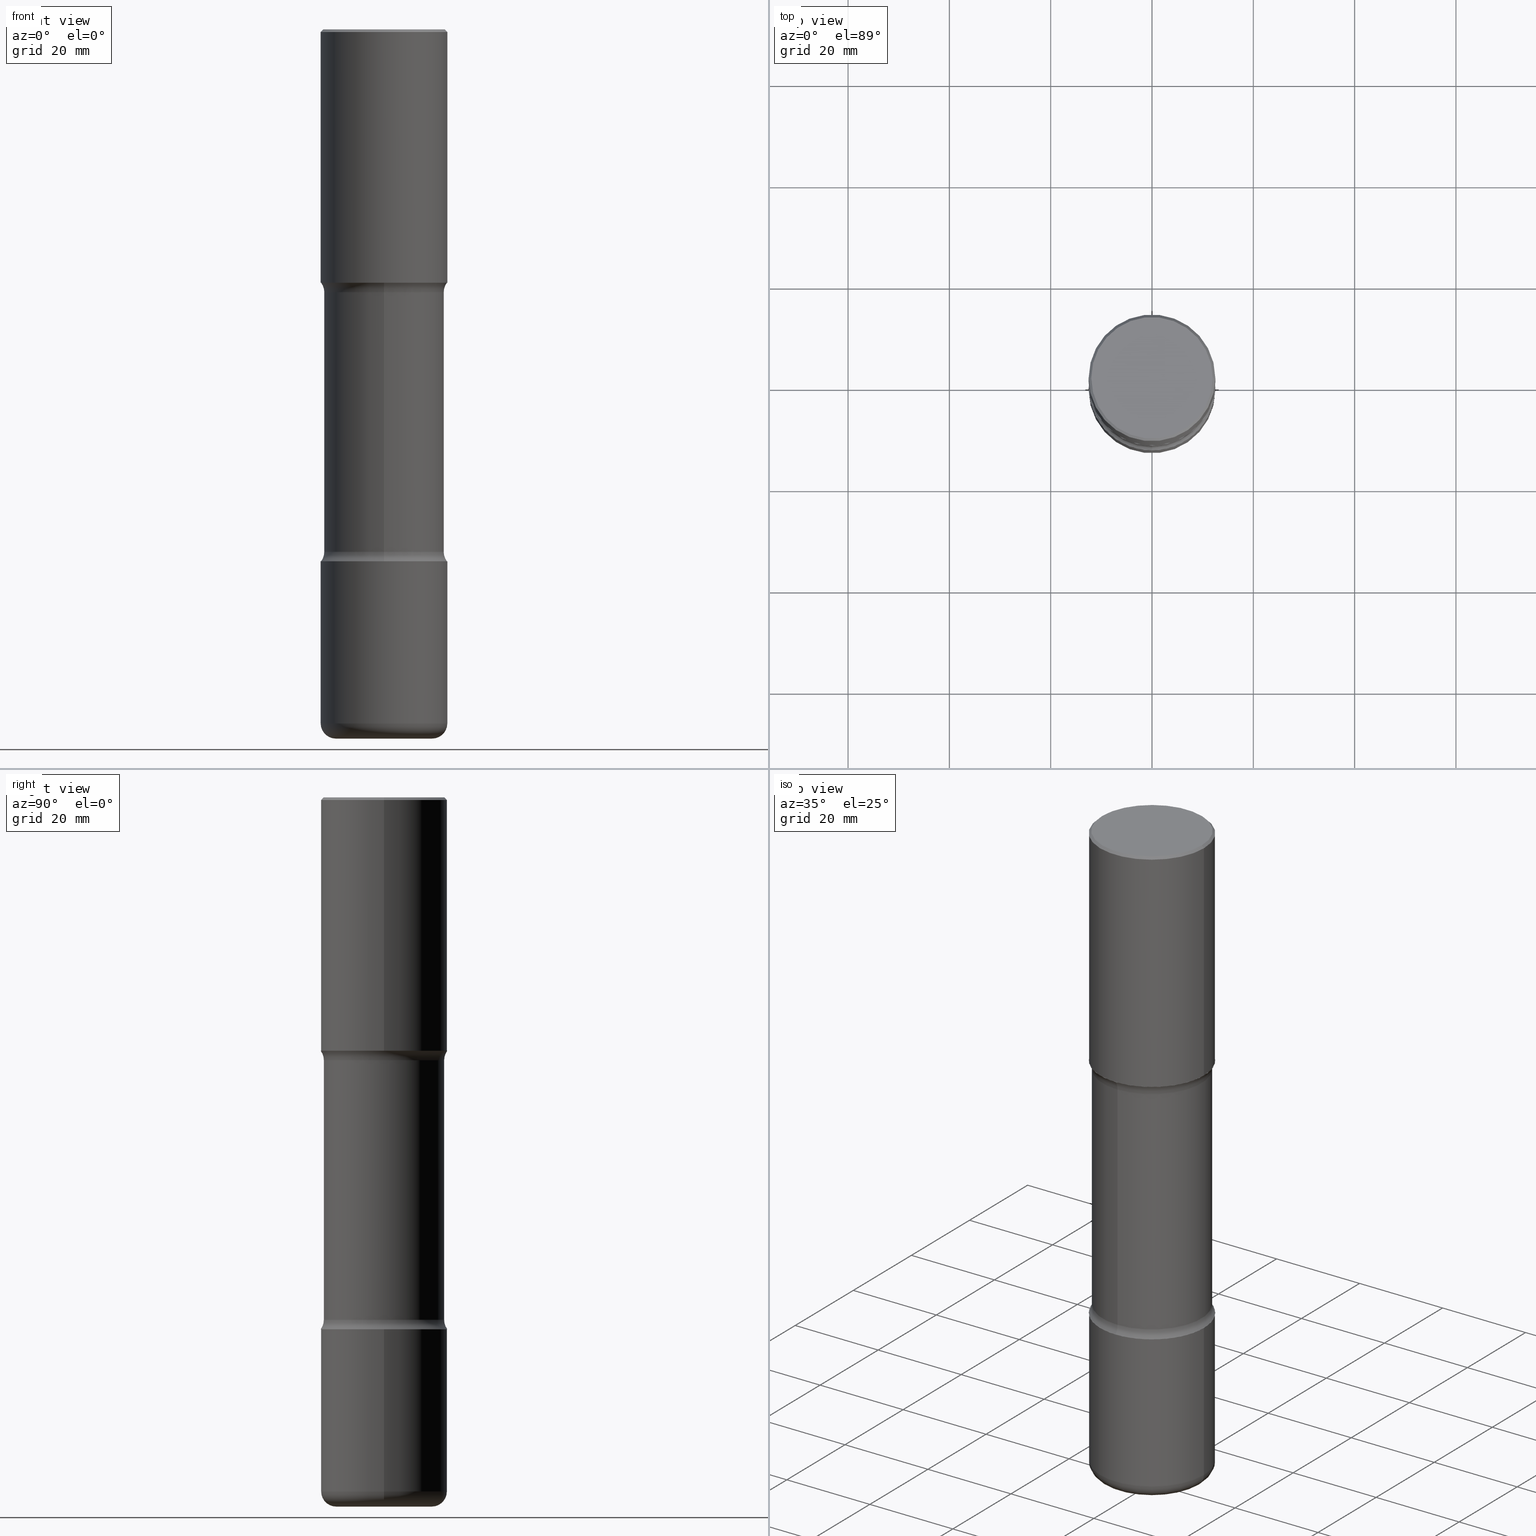
[diagram: canonical four-view strip — front | top / right | iso, engineering-drawing reading convention]
A machine part, canonical four-view strip (front | top / right | iso — engineering-drawing reading convention). The complete STEP part file that produces these views, byte-faithful:
ISO-10303-21;
HEADER;
FILE_DESCRIPTION (( 'STEP AP203' ),
    '1' );
FILE_NAME ('44645.STEP',
    '2024-03-02T02:24:33',
    ( '' ),
    ( '' ),
    'SwSTEP 2.0',
    'SolidWorks 2023',
    '' );
FILE_SCHEMA (( 'CONFIG_CONTROL_DESIGN' ));
ENDSEC;

DATA;
#1 =( CONVERSION_BASED_UNIT ( 'INCH', #312 ) LENGTH_UNIT ( ) NAMED_UNIT ( #356 ) );
#2 =( NAMED_UNIT ( * ) SI_UNIT ( $, .STERADIAN. ) SOLID_ANGLE_UNIT ( ) );
#3 = AXIS2_PLACEMENT_3D ( 'NONE', #272, #190, #344 ) ;
#4 = DIRECTION ( 'NONE',  ( -6.982962677686264344E-15, -1.000000000000000000, 0.000000000000000000 ) ) ;
#5 = ORIENTED_EDGE ( 'NONE', *, *, #541, .T. ) ;
#6 =( LENGTH_UNIT ( ) NAMED_UNIT ( * ) SI_UNIT ( $, .METRE. ) );
#7 = DIRECTION ( 'NONE',  ( 6.982962677686265133E-15, 1.000000000000000000, -3.313480949505536246E-15 ) ) ;
#8 = EDGE_CURVE ( 'NONE', #243, #454, #514, .T. ) ;
#9 = PERSON_AND_ORGANIZATION_ROLE ( 'classification_officer' ) ;
#10 = CARTESIAN_POINT ( 'NONE',  ( -0.4921499999999998098, 3.366835455046431295E-15, -0.02000000000000006981 ) ) ;
#11 = AXIS2_PLACEMENT_3D ( 'NONE', #81, #292, #208 ) ;
#12 = PRODUCT_DEFINITION ( 'UNKNOWN', '', #110, #72 ) ;
#13 = DIRECTION ( 'NONE',  ( -2.445468806185136597E-29, 3.491481338843145583E-15, 1.000000000000000000 ) ) ;
#14 = ORIENTED_EDGE ( 'NONE', *, *, #128, .T. ) ;
#15 = EDGE_CURVE ( 'NONE', #538, #104, #389, .T. ) ;
#16 = DIRECTION ( 'NONE',  ( 6.982962677686265133E-15, 1.000000000000000000, -3.313480949505536246E-15 ) ) ;
#17 = VERTEX_POINT ( 'NONE', #548 ) ;
#18 = DIRECTION ( 'NONE',  ( 1.000000000000000000, -6.982962677686265922E-15, 0.000000000000000000 ) ) ;
#19 = EDGE_LOOP ( 'NONE', ( #494, #460, #159, #319 ) ) ;
#20 = TOROIDAL_SURFACE ( 'NONE', #149, 0.5925000000000001377, 0.1250000000000000555 ) ;
#21 = AXIS2_PLACEMENT_3D ( 'NONE', #198, #151, #101 ) ;
#22 = DIRECTION ( 'NONE',  ( 7.105427357601001859E-15, 1.000000000000000000, -3.491481338843145583E-15 ) ) ;
#23 = EDGE_LOOP ( 'NONE', ( #457, #555 ) ) ;
#24 = DIRECTION ( 'NONE',  ( 2.438088387897960049E-29, -3.491481338843145188E-15, -1.000000000000000000 ) ) ;
#25 = EDGE_LOOP ( 'NONE', ( #116, #125 ) ) ;
#26 = PLANE ( 'NONE',  #11 ) ;
#27 = FACE_OUTER_BOUND ( 'NONE', #448, .T. ) ;
#28 = AXIS2_PLACEMENT_3D ( 'NONE', #401, #519, #137 ) ;
#29 = AXIS2_PLACEMENT_3D ( 'NONE', #176, #126, #294 ) ;
#30 = CARTESIAN_POINT ( 'NONE',  ( 0.4921500000000000874, -2.226866797914157358E-14, -5.393699999999999939 ) ) ;
#31 = DIRECTION ( 'NONE',  ( -6.982962677686266711E-15, -1.000000000000000000, 3.491481338843145583E-15 ) ) ;
#32 = CARTESIAN_POINT ( 'NONE',  ( -0.4921500000000000874, -1.533506682327494254E-14, -5.393699999999999939 ) ) ;
#33 = ADVANCED_FACE ( 'NONE', ( #420 ), #553, .T. ) ;
#34 = VERTEX_POINT ( 'NONE', #130 ) ;
#35 = PERSON_AND_ORGANIZATION ( #439, #398 ) ;
#36 = ORIENTED_EDGE ( 'NONE', *, *, #221, .F. ) ;
#37 = ADVANCED_FACE ( 'NONE', ( #27 ), #20, .F. ) ;
#38 = AXIS2_PLACEMENT_3D ( 'NONE', #44, #433, #41 ) ;
#39 = CALENDAR_DATE ( 2024, 1, 3 ) ;
#40 = AXIS2_PLACEMENT_3D ( 'NONE', #153, #103, #156 ) ;
#41 = DIRECTION ( 'NONE',  ( -6.982962677686264344E-15, -1.000000000000000000, 0.000000000000000000 ) ) ;
#42 = DIRECTION ( 'NONE',  ( 1.000000000000000000, 0.000000000000000000, 0.000000000000000000 ) ) ;
#43 = FACE_OUTER_BOUND ( 'NONE', #329, .T. ) ;
#44 = CARTESIAN_POINT ( 'NONE',  ( 4.137405386529213527E-15, 0.5924999999999860378, -4.059268949423749717 ) ) ;
#45 = ORIENTED_EDGE ( 'NONE', *, *, #114, .T. ) ;
#46 = PERSON_AND_ORGANIZATION ( #439, #398 ) ;
#47 = APPROVAL_PERSON_ORGANIZATION ( #263, #80, #388 ) ;
#48 = DIRECTION ( 'NONE',  ( -6.982962677686265922E-15, -1.000000000000000000, 3.313480949505536246E-15 ) ) ;
#49 = FACE_OUTER_BOUND ( 'NONE', #257, .T. ) ;
#50 = EDGE_CURVE ( 'NONE', #366, #34, #169, .T. ) ;
#51 = CARTESIAN_POINT ( 'NONE',  ( 1.010907895100811684E-28, -1.443308555850979562E-14, -4.133799999999999919 ) ) ;
#52 = APPROVAL ( #476, 'UNSPECIFIED' ) ;
#53 = APPROVAL_ROLE ( '' ) ;
#54 = CARTESIAN_POINT ( 'NONE',  ( 0.000000000000000000, 0.000000000000000000, 0.000000000000000000 ) ) ;
#55 = AXIS2_PLACEMENT_3D ( 'NONE', #437, #310, #4 ) ;
#56 = VERTEX_POINT ( 'NONE', #270 ) ;
#57 = AXIS2_PLACEMENT_3D ( 'NONE', #380, #547, #123 ) ;
#58 = CC_DESIGN_SECURITY_CLASSIFICATION ( #279, ( #110 ) ) ;
#59 = CARTESIAN_POINT ( 'NONE',  ( 4.890937612370289799E-31, -6.982962677686315028E-17, -0.02000000000000006981 ) ) ;
#60 = ORIENTED_EDGE ( 'NONE', *, *, #268, .T. ) ;
#61 = CC_DESIGN_DATE_AND_TIME_ASSIGNMENT ( #364, #100, ( #279 ) ) ;
#62 = FACE_OUTER_BOUND ( 'NONE', #215, .T. ) ;
#63 = ORIENTED_EDGE ( 'NONE', *, *, #188, .T. ) ;
#64 = FACE_OUTER_BOUND ( 'NONE', #276, .T. ) ;
#65 = ORIENTED_EDGE ( 'NONE', *, *, #339, .F. ) ;
#66 = AXIS2_PLACEMENT_3D ( 'NONE', #525, #308, #266 ) ;
#67 = CONICAL_SURFACE ( 'NONE', #416, 0.4921499999999998098, 0.7853981633974476129 ) ;
#68 = CARTESIAN_POINT ( 'NONE',  ( 3.297005828269569180E-15, 0.4721499999999997921, -1.637831632909539243E-15 ) ) ;
#69 = DIRECTION ( 'NONE',  ( -2.445468806185136597E-29, 3.491481338843145583E-15, 1.000000000000000000 ) ) ;
#70 = CARTESIAN_POINT ( 'NONE',  ( -5.219257071676102792E-46, 7.451715851902241201E-32, 2.134256245050207180E-17 ) ) ;
#71 = ORIENTED_EDGE ( 'NONE', *, *, #298, .F. ) ;
#72 = DESIGN_CONTEXT ( 'detailed design', #470, 'design' ) ;
#73 = CARTESIAN_POINT ( 'NONE',  ( 4.544765034558141024E-29, -7.258405258545457646E-15, -1.968500000000000139 ) ) ;
#74 = ORIENTED_EDGE ( 'NONE', *, *, #513, .T. ) ;
#75 = ADVANCED_BREP_SHAPE_REPRESENTATION ( '44645', ( #94, #105, #95, #323 ), #251 ) ;
#76 = TOROIDAL_SURFACE ( 'NONE', #306, 0.5925000000000002487, 0.1250000000000000833 ) ;
#77 = EDGE_CURVE ( 'NONE', #247, #120, #261, .T. ) ;
#78 = DIRECTION ( 'NONE',  ( 1.000000000000000000, -6.982962677686265922E-15, 4.876176775795935793E-29 ) ) ;
#79 = CARTESIAN_POINT ( 'NONE',  ( 4.757713796991006473E-29, -7.474685786972130125E-15, -2.043031050576253893 ) ) ;
#80 = APPROVAL ( #521, 'UNSPECIFIED' ) ;
#81 = CARTESIAN_POINT ( 'NONE',  ( 4.813905344975441835E-29, -6.872981015512731707E-15, -1.968500000000000139 ) ) ;
#82 = ORIENTED_EDGE ( 'NONE', *, *, #464, .T. ) ;
#83 = APPROVAL_ROLE ( '' ) ;
#84 = LINE ( 'NONE', #228, #415 ) ;
#85 = DATE_AND_TIME ( #88, #271 ) ;
#86 = AXIS2_PLACEMENT_3D ( 'NONE', #377, #328, #503 ) ;
#87 = DIRECTION ( 'NONE',  ( -2.445468806185136877E-29, 3.491481338843145188E-15, 1.000000000000000000 ) ) ;
#88 = CALENDAR_DATE ( 2024, 1, 3 ) ;
#89 = LINE ( 'NONE', #259, #350 ) ;
#90 = ADVANCED_FACE ( 'NONE', ( #487 ), #264, .T. ) ;
#91 = EDGE_LOOP ( 'NONE', ( #430, #36 ) ) ;
#92 = APPLICATION_PROTOCOL_DEFINITION ( 'international standard', 'config_control_design', 1994, #117 ) ;
#93 = DIRECTION ( 'NONE',  ( -2.445468806185136597E-29, 3.491481338843145583E-15, 1.000000000000000000 ) ) ;
#94 = MANIFOLD_SOLID_BREP ( 'Body-Move/Copy2[1]', #361 ) ;
#95 = MANIFOLD_SOLID_BREP ( 'Body-Move/Copy2[4]', #360 ) ;
#96 = CARTESIAN_POINT ( 'NONE',  ( 0.000000000000000000, 0.000000000000000000, 0.000000000000000000 ) ) ;
#97 = EDGE_CURVE ( 'NONE', #366, #235, #84, .T. ) ;
#98 = TOROIDAL_SURFACE ( 'NONE', #242, 0.5925000000000001377, 0.1250000000000000555 ) ;
#99 = CARTESIAN_POINT ( 'NONE',  ( -3.376394089603157682E-15, -0.4921500000000144648, -4.133799999999998143 ) ) ;
#100 = DATE_TIME_ROLE ( 'classification_date' ) ;
#101 = DIRECTION ( 'NONE',  ( 1.000000000000000000, -6.982962677686263555E-15, 4.883557194083111219E-29 ) ) ;
#102 = CALENDAR_DATE ( 2024, 1, 3 ) ;
#103 = DIRECTION ( 'NONE',  ( 2.569765813720951550E-29, -3.313480949505536246E-15, -1.000000000000000000 ) ) ;
#104 = VERTEX_POINT ( 'NONE', #404 ) ;
#105 = MANIFOLD_SOLID_BREP ( 'Body-Move/Copy2[2]', #406 ) ;
#106 = DIRECTION ( 'NONE',  ( 2.569765813720951550E-29, -3.313480949505536246E-15, -1.000000000000000000 ) ) ;
#107 = CIRCLE ( 'NONE', #38, 0.1250000000000001110 ) ;
#108 = CIRCLE ( 'NONE', #40, 0.4675000000000001932 ) ;
#109 = ORIENTED_EDGE ( 'NONE', *, *, #442, .T. ) ;
#110 = PRODUCT_DEFINITION_FORMATION_WITH_SPECIFIED_SOURCE ( 'ANY', '', #480, .NOT_KNOWN. ) ;
#111 = ADVANCED_FACE ( 'NONE', ( #147 ), #249, .T. ) ;
#112 = DIRECTION ( 'NONE',  ( -2.445468806185136597E-29, 3.491481338843145583E-15, 1.000000000000000000 ) ) ;
#113 = ORIENTED_EDGE ( 'NONE', *, *, #15, .T. ) ;
#114 = EDGE_CURVE ( 'NONE', #17, #538, #232, .T. ) ;
#115 = DIRECTION ( 'NONE',  ( 1.000000000000000000, -6.982962677686265922E-15, 0.000000000000000000 ) ) ;
#116 = ORIENTED_EDGE ( 'NONE', *, *, #520, .T. ) ;
#117 = APPLICATION_CONTEXT ( 'configuration controlled 3d designs of mechanical parts and assemblies' ) ;
#118 = ADVANCED_FACE ( 'NONE', ( #43 ), #486, .T. ) ;
#119 = DIRECTION ( 'NONE',  ( -1.000000000000000000, 6.982962677686265922E-15, 0.000000000000000000 ) ) ;
#120 = VERTEX_POINT ( 'NONE', #99 ) ;
#121 = CIRCLE ( 'NONE', #432, 0.4921500000000000874 ) ;
#122 = CC_DESIGN_APPROVAL ( #142, ( #279 ) ) ;
#123 = DIRECTION ( 'NONE',  ( 6.982962677686265133E-15, 1.000000000000000000, -3.506115072082475215E-15 ) ) ;
#124 = CC_DESIGN_PERSON_AND_ORGANIZATION_ASSIGNMENT ( #35, #431, ( #480 ) ) ;
#125 = ORIENTED_EDGE ( 'NONE', *, *, #402, .T. ) ;
#126 = DIRECTION ( 'NONE',  ( -2.445468806185136597E-29, 3.491481338843145583E-15, 1.000000000000000000 ) ) ;
#127 = DIRECTION ( 'NONE',  ( 2.569765813720951550E-29, -3.313480949505536246E-15, -1.000000000000000000 ) ) ;
#128 = EDGE_CURVE ( 'NONE', #34, #366, #461, .T. ) ;
#129 = CARTESIAN_POINT ( 'NONE',  ( 0.000000000000000000, 0.000000000000000000, 0.000000000000000000 ) ) ;
#130 = CARTESIAN_POINT ( 'NONE',  ( 0.4921500000000000874, -1.030964609733602906E-14, -1.968500000000000139 ) ) ;
#131 = LOCAL_TIME ( 21, 24, 33.00000000000000000, #222 ) ;
#132 = CARTESIAN_POINT ( 'NONE',  ( 0.4921500000000001984, -1.786975064033309297E-14, -4.133799999999999919 ) ) ;
#133 = VERTEX_POINT ( 'NONE', #349 ) ;
#134 = APPLICATION_PROTOCOL_DEFINITION ( 'international standard', 'config_control_design', 1994, #470 ) ;
#135 = DIRECTION ( 'NONE',  ( -2.445468806185136597E-29, 3.491481338843145583E-15, 1.000000000000000000 ) ) ;
#136 = DATE_AND_TIME ( #302, #131 ) ;
#137 = DIRECTION ( 'NONE',  ( 6.982962677686265133E-15, 1.000000000000000000, -3.313480949505536246E-15 ) ) ;
#138 = CIRCLE ( 'NONE', #66, 0.4921500000000001984 ) ;
#139 = PERSON_AND_ORGANIZATION ( #439, #398 ) ;
#140 = AXIS2_PLACEMENT_3D ( 'NONE', #395, #143, #309 ) ;
#141 = DIRECTION ( 'NONE',  ( 1.000000000000000000, -6.982962677686263555E-15, 4.883557194083111219E-29 ) ) ;
#142 = APPROVAL ( #533, 'UNSPECIFIED' ) ;
#143 = DIRECTION ( 'NONE',  ( -2.445468806185136597E-29, 3.491481338843145583E-15, 1.000000000000000000 ) ) ;
#144 = DIRECTION ( 'NONE',  ( 6.982962677686266711E-15, 1.000000000000000000, -3.330506545156064679E-15 ) ) ;
#145 = EDGE_CURVE ( 'NONE', #502, #517, #138, .T. ) ;
#146 = LINE ( 'NONE', #181, #382 ) ;
#147 = FACE_OUTER_BOUND ( 'NONE', #387, .T. ) ;
#148 = ADVANCED_FACE ( 'NONE', ( #49 ), #187, .F. ) ;
#149 = AXIS2_PLACEMENT_3D ( 'NONE', #79, #355, #7 ) ;
#150 = AXIS2_PLACEMENT_3D ( 'NONE', #129, #296, #78 ) ;
#151 = DIRECTION ( 'NONE',  ( -2.445468806185136597E-29, 3.491481338843145583E-15, 1.000000000000000000 ) ) ;
#152 = PERSON_AND_ORGANIZATION ( #439, #398 ) ;
#153 = CARTESIAN_POINT ( 'NONE',  ( 4.736292380389705471E-29, -7.505362474776508302E-15, -2.043031050576253893 ) ) ;
#154 = ORIENTED_EDGE ( 'NONE', *, *, #77, .T. ) ;
#155 = CYLINDRICAL_SURFACE ( 'NONE', #489, 0.4921500000000000874 ) ;
#156 = DIRECTION ( 'NONE',  ( 6.982962677686265133E-15, 1.000000000000000000, -3.506115072082475215E-15 ) ) ;
#157 = AXIS2_PLACEMENT_3D ( 'NONE', #485, #135, #141 ) ;
#158 = AXIS2_PLACEMENT_3D ( 'NONE', #493, #491, #365 ) ;
#159 = ORIENTED_EDGE ( 'NONE', *, *, #311, .T. ) ;
#160 = ADVANCED_FACE ( 'NONE', ( #182 ), #531, .F. ) ;
#161 = CARTESIAN_POINT ( 'NONE',  ( 1.347893496593123646E-28, -1.924434684343564878E-14, -5.511800000000000033 ) ) ;
#162 = ORIENTED_EDGE ( 'NONE', *, *, #455, .T. ) ;
#163 = EDGE_CURVE ( 'NONE', #17, #414, #223, .T. ) ;
#164 = DIRECTION ( 'NONE',  ( -2.445468806185136597E-29, 3.491481338843145583E-15, 1.000000000000000000 ) ) ;
#165 = VERTEX_POINT ( 'NONE', #305 ) ;
#166 = EDGE_CURVE ( 'NONE', #467, #133, #89, .T. ) ;
#167 = FACE_OUTER_BOUND ( 'NONE', #25, .T. ) ;
#168 = DIRECTION ( 'NONE',  ( 1.000000000000000000, -6.982962677686265922E-15, 4.876176775795935793E-29 ) ) ;
#169 = CIRCLE ( 'NONE', #341, 0.4921500000000000874 ) ;
#170 = AXIS2_PLACEMENT_3D ( 'NONE', #424, #466, #428 ) ;
#171 = CC_DESIGN_APPROVAL ( #52, ( #110 ) ) ;
#172 = FACE_OUTER_BOUND ( 'NONE', #204, .T. ) ;
#173 = EDGE_LOOP ( 'NONE', ( #293, #545, #202, #217 ) ) ;
#174 = FACE_OUTER_BOUND ( 'NONE', #509, .T. ) ;
#175 = DIRECTION ( 'NONE',  ( 1.000000000000000000, -6.982962677686274599E-15, 0.000000000000000000 ) ) ;
#176 = CARTESIAN_POINT ( 'NONE',  ( -5.219257071676102792E-46, 7.451715851902241201E-32, 2.134256245050207180E-17 ) ) ;
#177 = ORIENTED_EDGE ( 'NONE', *, *, #330, .F. ) ;
#178 = CIRCLE ( 'NONE', #86, 0.4674999999999999156 ) ;
#179 =( NAMED_UNIT ( * ) PLANE_ANGLE_UNIT ( ) SI_UNIT ( $, .RADIAN. ) );
#180 = CARTESIAN_POINT ( 'NONE',  ( 4.544765034558141024E-29, -7.258405258545457646E-15, -1.968500000000000139 ) ) ;
#181 = CARTESIAN_POINT ( 'NONE',  ( -3.207282813958054974E-15, -0.4675000000000190670, -5.511799999999999145 ) ) ;
#182 = FACE_OUTER_BOUND ( 'NONE', #418, .T. ) ;
#183 = EDGE_CURVE ( 'NONE', #247, #414, #107, .T. ) ;
#184 = DIRECTION ( 'NONE',  ( 6.860497997771531562E-15, 1.000000000000000000, 0.000000000000000000 ) ) ;
#185 = AXIS2_PLACEMENT_3D ( 'NONE', #560, #394, #184 ) ;
#186 = AXIS2_PLACEMENT_3D ( 'NONE', #287, #334, #508 ) ;
#187 = PLANE ( 'NONE',  #449 ) ;
#188 = EDGE_CURVE ( 'NONE', #500, #454, #121, .T. ) ;
#189 = ORIENTED_EDGE ( 'NONE', *, *, #552, .T. ) ;
#190 = DIRECTION ( 'NONE',  ( -2.445468806185136597E-29, 3.491481338843145583E-15, 1.000000000000000000 ) ) ;
#191 = CC_DESIGN_PERSON_AND_ORGANIZATION_ASSIGNMENT ( #152, #9, ( #279 ) ) ;
#192 = FACE_OUTER_BOUND ( 'NONE', #250, .T. ) ;
#193 = VECTOR ( 'NONE', #419, 39.37007874015748143 ) ;
#194 = DIRECTION ( 'NONE',  ( 2.569765813720951550E-29, -3.313480949505536246E-15, -1.000000000000000000 ) ) ;
#195 = DIRECTION ( 'NONE',  ( 1.000000000000000000, -6.982962677686267499E-15, 0.000000000000000000 ) ) ;
#196 = ORIENTED_EDGE ( 'NONE', *, *, #268, .F. ) ;
#197 = CC_DESIGN_PERSON_AND_ORGANIZATION_ASSIGNMENT ( #46, #523, ( #12 ) ) ;
#198 = CARTESIAN_POINT ( 'NONE',  ( 1.319012509992077146E-28, -1.883200289731827623E-14, -5.393699999999999939 ) ) ;
#199 = ORIENTED_EDGE ( 'NONE', *, *, #458, .T. ) ;
#200 = CARTESIAN_POINT ( 'NONE',  ( 1.347893496593123646E-28, -1.924434684343564878E-14, -5.511800000000000033 ) ) ;
#201 = CC_DESIGN_APPROVAL ( #80, ( #12 ) ) ;
#202 = ORIENTED_EDGE ( 'NONE', *, *, #163, .T. ) ;
#203 = DIRECTION ( 'NONE',  ( -1.000000000000000000, 7.105427357601006592E-15, 0.000000000000000000 ) ) ;
#204 = EDGE_LOOP ( 'NONE', ( #429, #469 ) ) ;
#205 = EDGE_CURVE ( 'NONE', #120, #290, #423, .T. ) ;
#206 = DIRECTION ( 'NONE',  ( 6.982962677686265922E-15, 1.000000000000000000, -3.330506545156062313E-15 ) ) ;
#207 = ORIENTED_EDGE ( 'NONE', *, *, #8, .T. ) ;
#208 = DIRECTION ( 'NONE',  ( 6.982962677686265922E-15, 1.000000000000000000, -3.313480949505536246E-15 ) ) ;
#209 = AXIS2_PLACEMENT_3D ( 'NONE', #512, #69, #168 ) ;
#210 = CIRCLE ( 'NONE', #332, 0.4921500000000005315 ) ;
#211 = AXIS2_PLACEMENT_3D ( 'NONE', #68, #24, #515 ) ;
#212 = FACE_OUTER_BOUND ( 'NONE', #504, .T. ) ;
#213 = ORIENTED_EDGE ( 'NONE', *, *, #458, .F. ) ;
#214 = CARTESIAN_POINT ( 'NONE',  ( -0.4921500000000002539, -1.313560815387070066E-14, -4.133799999999999919 ) ) ;
#215 = EDGE_LOOP ( 'NONE', ( #325, #535 ) ) ;
#216 = DIRECTION ( 'NONE',  ( -2.445468806185136877E-29, 3.491481338843145188E-15, 1.000000000000000000 ) ) ;
#217 = ORIENTED_EDGE ( 'NONE', *, *, #464, .F. ) ;
#218 = EDGE_CURVE ( 'NONE', #133, #235, #471, .T. ) ;
#219 = CIRCLE ( 'NONE', #29, 0.4721499999999997921 ) ;
#220 = CARTESIAN_POINT ( 'NONE',  ( 1.319012509992077146E-28, -1.883200289731827623E-14, -5.393699999999999939 ) ) ;
#221 = EDGE_CURVE ( 'NONE', #56, #243, #322, .T. ) ;
#222 = COORDINATED_UNIVERSAL_TIME_OFFSET ( 5, 0, .BEHIND. ) ;
#223 = LINE ( 'NONE', #303, #288 ) ;
#224 = DIRECTION ( 'NONE',  ( -2.569765813720951550E-29, 3.313480949505536246E-15, 1.000000000000000000 ) ) ;
#225 = CIRCLE ( 'NONE', #542, 0.4921499999999998098 ) ;
#226 = CIRCLE ( 'NONE', #462, 0.4721499999999997921 ) ;
#227 = DATE_TIME_ROLE ( 'creation_date' ) ;
#228 = CARTESIAN_POINT ( 'NONE',  ( -0.4921499999999999764, 3.496936074043332897E-15, -2.420853904668951509E-29 ) ) ;
#229 = COORDINATED_UNIVERSAL_TIME_OFFSET ( 5, 0, .BEHIND. ) ;
#230 = DIRECTION ( 'NONE',  ( 2.569765813720951550E-29, -3.313480949505536246E-15, -1.000000000000000000 ) ) ;
#231 = EDGE_CURVE ( 'NONE', #235, #133, #225, .T. ) ;
#232 = CIRCLE ( 'NONE', #55, 0.1250000000000001110 ) ;
#233 = CIRCLE ( 'NONE', #57, 0.4675000000000001932 ) ;
#234 = DIRECTION ( 'NONE',  ( 2.438088387897960049E-29, -3.491481338843145188E-15, -1.000000000000000000 ) ) ;
#235 = VERTEX_POINT ( 'NONE', #456 ) ;
#236 = ORIENTED_EDGE ( 'NONE', *, *, #455, .F. ) ;
#237 = ADVANCED_FACE ( 'NONE', ( #447 ), #359, .T. ) ;
#238 = PLANE ( 'NONE',  #158 ) ;
#239 = ORIENTED_EDGE ( 'NONE', *, *, #97, .T. ) ;
#240 = CARTESIAN_POINT ( 'NONE',  ( 4.890937612370289799E-31, -6.982962677686315028E-17, -0.02000000000000006981 ) ) ;
#241 = AXIS2_PLACEMENT_3D ( 'NONE', #478, #526, #529 ) ;
#242 = AXIS2_PLACEMENT_3D ( 'NONE', #537, #106, #16 ) ;
#243 = VERTEX_POINT ( 'NONE', #320 ) ;
#244 = LINE ( 'NONE', #554, #193 ) ;
#245 = ORIENTED_EDGE ( 'NONE', *, *, #97, .F. ) ;
#246 = DIRECTION ( 'NONE',  ( -2.445468806185136597E-29, 3.491481338843145583E-15, 1.000000000000000000 ) ) ;
#247 = VERTEX_POINT ( 'NONE', #499 ) ;
#248 = DIRECTION ( 'NONE',  ( 2.569765813720951550E-29, -3.313480949505536246E-15, -1.000000000000000000 ) ) ;
#249 = TOROIDAL_SURFACE ( 'NONE', #157, 0.3740500000000002156, 0.1180999999999999689 ) ;
#250 = EDGE_LOOP ( 'NONE', ( #399, #336, #390, #342 ) ) ;
#251 =( GEOMETRIC_REPRESENTATION_CONTEXT ( 3 ) GLOBAL_UNCERTAINTY_ASSIGNED_CONTEXT ( ( #347 ) ) GLOBAL_UNIT_ASSIGNED_CONTEXT ( ( #1, #179, #2 ) ) REPRESENTATION_CONTEXT ( 'NONE', 'WORKASPACE' ) );
#252 = ADVANCED_FACE ( 'NONE', ( #539 ), #373, .T. ) ;
#253 = CARTESIAN_POINT ( 'NONE',  ( 0.4721499999999997921, -3.342703923013974185E-15, 2.134256245052528773E-17 ) ) ;
#254 = ORIENTED_EDGE ( 'NONE', *, *, #77, .F. ) ;
#255 = CARTESIAN_POINT ( 'NONE',  ( -0.4921500000000000874, 2.553075289853658979E-17, -1.968500000000000139 ) ) ;
#256 = ADVANCED_FACE ( 'NONE', ( #544 ), #326, .T. ) ;
#257 = EDGE_LOOP ( 'NONE', ( #154, #60 ) ) ;
#258 = LINE ( 'NONE', #559, #497 ) ;
#259 = CARTESIAN_POINT ( 'NONE',  ( 0.4921499999999998098, -3.446223716380121560E-15, -0.02000000000000006981 ) ) ;
#260 = ADVANCED_FACE ( 'NONE', ( #64 ), #155, .T. ) ;
#261 = CIRCLE ( 'NONE', #479, 0.4921500000000001984 ) ;
#262 = AXIS2_PLACEMENT_3D ( 'NONE', #411, #370, #283 ) ;
#263 = PERSON_AND_ORGANIZATION ( #439, #398 ) ;
#264 = CYLINDRICAL_SURFACE ( 'NONE', #241, 0.4921499999999999764 ) ;
#265 = APPROVAL_DATE_TIME ( #304, #52 ) ;
#266 = DIRECTION ( 'NONE',  ( 1.000000000000000000, -6.982962677686267499E-15, 0.000000000000000000 ) ) ;
#267 = ORIENTED_EDGE ( 'NONE', *, *, #357, .T. ) ;
#268 = EDGE_CURVE ( 'NONE', #120, #247, #532, .T. ) ;
#269 = DIRECTION ( 'NONE',  ( 1.000000000000000000, -6.982962677686265922E-15, 4.876408284878641364E-29 ) ) ;
#270 = CARTESIAN_POINT ( 'NONE',  ( -0.3740500000000002156, -1.596081428179996673E-14, -5.511800000000000033 ) ) ;
#271 = LOCAL_TIME ( 21, 24, 33.00000000000000000, #348 ) ;
#272 = CARTESIAN_POINT ( 'NONE',  ( 4.813905344975441835E-29, -6.872981015512731707E-15, -1.968500000000000139 ) ) ;
#273 = DIRECTION ( 'NONE',  ( -1.000000000000000000, 6.982962677686265922E-15, 0.000000000000000000 ) ) ;
#274 = ADVANCED_FACE ( 'NONE', ( #192 ), #407, .T. ) ;
#275 = DIRECTION ( 'NONE',  ( 6.982962677686266711E-15, 1.000000000000000000, -3.330506545156064679E-15 ) ) ;
#276 = EDGE_LOOP ( 'NONE', ( #267, #189, #71, #213 ) ) ;
#277 = CC_DESIGN_DATE_AND_TIME_ASSIGNMENT ( #85, #227, ( #12 ) ) ;
#278 = AXIS2_PLACEMENT_3D ( 'NONE', #180, #127, #465 ) ;
#279 = SECURITY_CLASSIFICATION ( '', '', #536 ) ;
#280 = DIRECTION ( 'NONE',  ( 2.569765813720951550E-29, -3.313480949505536246E-15, -1.000000000000000000 ) ) ;
#281 = ORIENTED_EDGE ( 'NONE', *, *, #50, .T. ) ;
#282 = CALENDAR_DATE ( 2024, 1, 3 ) ;
#283 = DIRECTION ( 'NONE',  ( 6.860497997771527618E-15, 1.000000000000000000, 0.000000000000000000 ) ) ;
#284 = ORIENTED_EDGE ( 'NONE', *, *, #527, .T. ) ;
#285 = DIRECTION ( 'NONE',  ( 2.445468806185136597E-29, -3.491481338843145583E-15, -1.000000000000000000 ) ) ;
#286 = ORIENTED_EDGE ( 'NONE', *, *, #114, .F. ) ;
#287 = CARTESIAN_POINT ( 'NONE',  ( 9.917551605176555751E-29, -1.418612834227874970E-14, -4.059268949423747053 ) ) ;
#288 = VECTOR ( 'NONE', #230, 39.37007874015748143 ) ;
#289 = CIRCLE ( 'NONE', #374, 0.4921500000000001984 ) ;
#290 = VERTEX_POINT ( 'NONE', #417 ) ;
#291 = APPROVAL_PERSON_ORGANIZATION ( #358, #142, #53 ) ;
#292 = DIRECTION ( 'NONE',  ( 2.569765813720951550E-29, -3.313480949505536246E-15, -1.000000000000000000 ) ) ;
#293 = ORIENTED_EDGE ( 'NONE', *, *, #527, .F. ) ;
#294 = DIRECTION ( 'NONE',  ( 1.000000000000000000, -6.982962677686265922E-15, 4.876408284878641364E-29 ) ) ;
#295 = CARTESIAN_POINT ( 'NONE',  ( 0.3740500000000002156, -2.144398008690682532E-14, -5.393699999999999939 ) ) ;
#296 = DIRECTION ( 'NONE',  ( -2.445468806185136597E-29, 3.491481338843145583E-15, 1.000000000000000000 ) ) ;
#297 = VERTEX_POINT ( 'NONE', #446 ) ;
#298 = EDGE_CURVE ( 'NONE', #517, #502, #289, .T. ) ;
#299 = CARTESIAN_POINT ( 'NONE',  ( 9.926815591731684962E-29, -1.417286178625843449E-14, -4.059268949423747053 ) ) ;
#300 = ORIENTED_EDGE ( 'NONE', *, *, #339, .T. ) ;
#301 = ADVANCED_FACE ( 'NONE', ( #453 ), #98, .F. ) ;
#302 = CALENDAR_DATE ( 2024, 1, 3 ) ;
#303 = CARTESIAN_POINT ( 'NONE',  ( 3.264535051818466476E-15, 0.4674999999999810973, -5.511800000000000921 ) ) ;
#304 = DATE_AND_TIME ( #39, #426 ) ;
#305 = CARTESIAN_POINT ( 'NONE',  ( -3.291838451780682059E-15, -0.4675000000000077982, -2.043031050576252117 ) ) ;
#306 = AXIS2_PLACEMENT_3D ( 'NONE', #299, #468, #549 ) ;
#307 = LOCAL_TIME ( 21, 24, 33.00000000000000000, #403 ) ;
#308 = DIRECTION ( 'NONE',  ( -2.445468806185136597E-29, 3.491481338843145583E-15, 1.000000000000000000 ) ) ;
#309 = DIRECTION ( 'NONE',  ( 1.000000000000000000, -6.982962677686269866E-15, 0.000000000000000000 ) ) ;
#310 = DIRECTION ( 'NONE',  ( -1.000000000000000000, 6.982962677686265922E-15, -4.883557194083112340E-29 ) ) ;
#311 = EDGE_CURVE ( 'NONE', #297, #235, #405, .T. ) ;
#312 = LENGTH_MEASURE_WITH_UNIT ( LENGTH_MEASURE( 0.02539999999999999897 ), #6 );
#313 = DIRECTION ( 'NONE',  ( 2.569765813720951550E-29, -3.313480949505536246E-15, -1.000000000000000000 ) ) ;
#314 = AXIS2_PLACEMENT_3D ( 'NONE', #375, #194, #530 ) ;
#315 = LOCAL_TIME ( 21, 24, 33.00000000000000000, #229 ) ;
#316 = CARTESIAN_POINT ( 'NONE',  ( 1.010907895100811684E-28, -1.443308555850979562E-14, -4.133799999999999919 ) ) ;
#317 = ADVANCED_FACE ( 'NONE', ( #62 ), #238, .F. ) ;
#318 = DIRECTION ( 'NONE',  ( -1.000000000000000000, 6.982962677686265922E-15, -4.876176775795935793E-29 ) ) ;
#319 = ORIENTED_EDGE ( 'NONE', *, *, #231, .T. ) ;
#320 = CARTESIAN_POINT ( 'NONE',  ( 0.3740500000000002156, -2.185632403302420103E-14, -5.511800000000000033 ) ) ;
#321 = ORIENTED_EDGE ( 'NONE', *, *, #183, .T. ) ;
#322 = CIRCLE ( 'NONE', #397, 0.3740500000000002156 ) ;
#323 = AXIS2_PLACEMENT_3D ( 'NONE', #96, #484, #42 ) ;
#324 = DIRECTION ( 'NONE',  ( -2.445468806185136597E-29, 3.491481338843145583E-15, 1.000000000000000000 ) ) ;
#325 = ORIENTED_EDGE ( 'NONE', *, *, #128, .F. ) ;
#326 = PLANE ( 'NONE',  #557 ) ;
#327 = ORIENTED_EDGE ( 'NONE', *, *, #145, .F. ) ;
#328 = DIRECTION ( 'NONE',  ( 2.569765813720951550E-29, -3.313480949505536246E-15, -1.000000000000000000 ) ) ;
#329 = EDGE_LOOP ( 'NONE', ( #409, #284, #236, #369 ) ) ;
#330 = EDGE_CURVE ( 'NONE', #17, #165, #108, .T. ) ;
#331 = PLANE ( 'NONE',  #211 ) ;
#332 = AXIS2_PLACEMENT_3D ( 'NONE', #73, #248, #206 ) ;
#333 = ORIENTED_EDGE ( 'NONE', *, *, #205, .F. ) ;
#334 = DIRECTION ( 'NONE',  ( 2.569765813720951550E-29, -3.313480949505536246E-15, -1.000000000000000000 ) ) ;
#335 = CC_DESIGN_PERSON_AND_ORGANIZATION_ASSIGNMENT ( #436, #393, ( #110 ) ) ;
#336 = ORIENTED_EDGE ( 'NONE', *, *, #166, .T. ) ;
#337 = CARTESIAN_POINT ( 'NONE',  ( 3.264535051818428216E-15, 0.4674999999999857048, -4.059268949423748829 ) ) ;
#338 = EDGE_LOOP ( 'NONE', ( #245, #281, #74, #558 ) ) ;
#339 = EDGE_CURVE ( 'NONE', #165, #104, #505, .T. ) ;
#340 = CARTESIAN_POINT ( 'NONE',  ( 4.890937612370289799E-31, -6.982962677686315028E-17, -0.02000000000000006981 ) ) ;
#341 = AXIS2_PLACEMENT_3D ( 'NONE', #383, #93, #396 ) ;
#342 = ORIENTED_EDGE ( 'NONE', *, *, #311, .F. ) ;
#343 = DIRECTION ( 'NONE',  ( 2.569765813720951550E-29, -3.313480949505536246E-15, -1.000000000000000000 ) ) ;
#344 = DIRECTION ( 'NONE',  ( 1.000000000000000000, -6.982962677686265922E-15, 0.000000000000000000 ) ) ;
#345 = COORDINATED_UNIVERSAL_TIME_OFFSET ( 5, 0, .BEHIND. ) ;
#346 = DIRECTION ( 'NONE',  ( 0.7071067811865469066, -7.319954787623252890E-15, -0.7071067811865479058 ) ) ;
#347 = UNCERTAINTY_MEASURE_WITH_UNIT (LENGTH_MEASURE( 1.000000000000000082E-05 ), #1, 'distance_accuracy_value', 'NONE');
#348 = COORDINATED_UNIVERSAL_TIME_OFFSET ( 5, 0, .BEHIND. ) ;
#349 = CARTESIAN_POINT ( 'NONE',  ( 0.4921499999999998098, -3.446223716380121560E-15, -0.02000000000000006981 ) ) ;
#350 = VECTOR ( 'NONE', #346, 39.37007874015748854 ) ;
#351 = AXIS2_PLACEMENT_3D ( 'NONE', #240, #285, #273 ) ;
#352 = MECHANICAL_CONTEXT ( 'NONE', #117, 'mechanical' ) ;
#353 = DIRECTION ( 'NONE',  ( 1.000000000000000000, -6.982962677686264344E-15, 0.000000000000000000 ) ) ;
#354 = CARTESIAN_POINT ( 'NONE',  ( 3.436665081823345080E-15, 0.4921499999999934261, -1.968500000000001693 ) ) ;
#355 = DIRECTION ( 'NONE',  ( 2.569765813720951550E-29, -3.313480949505536246E-15, -1.000000000000000000 ) ) ;
#356 = DIMENSIONAL_EXPONENTS ( 1.000000000000000000, 0.000000000000000000, 0.000000000000000000, 0.000000000000000000, 0.000000000000000000, 0.000000000000000000, 0.000000000000000000 ) ;
#357 = EDGE_CURVE ( 'NONE', #454, #500, #451, .T. ) ;
#358 = PERSON_AND_ORGANIZATION ( #439, #398 ) ;
#359 = CYLINDRICAL_SURFACE ( 'NONE', #314, 0.4675000000000000822 ) ;
#360 = CLOSED_SHELL ( 'NONE', ( #118, #160, #37, #301, #371, #148, #379, #237 ) ) ;
#361 = CLOSED_SHELL ( 'NONE', ( #260, #111, #256, #252, #33, #435 ) ) ;
#362 = ADVANCED_FACE ( 'NONE', ( #506 ), #67, .T. ) ;
#363 = AXIS2_PLACEMENT_3D ( 'NONE', #413, #164, #386 ) ;
#364 = DATE_AND_TIME ( #102, #315 ) ;
#365 = DIRECTION ( 'NONE',  ( 1.000000000000000000, -6.982962677686265922E-15, 4.876176775795935793E-29 ) ) ;
#366 = VERTEX_POINT ( 'NONE', #255 ) ;
#367 = DATE_AND_TIME ( #282, #307 ) ;
#368 = DIRECTION ( 'NONE',  ( -0.7071067811865469066, 2.468850131082251144E-15, -0.7071067811865479058 ) ) ;
#369 = ORIENTED_EDGE ( 'NONE', *, *, #163, .F. ) ;
#370 = DIRECTION ( 'NONE',  ( 1.000000000000000000, -6.860497997771530774E-15, 4.842978755694635864E-29 ) ) ;
#371 = ADVANCED_FACE ( 'NONE', ( #384 ), #26, .F. ) ;
#372 = ORIENTED_EDGE ( 'NONE', *, *, #450, .F. ) ;
#373 = TOROIDAL_SURFACE ( 'NONE', #21, 0.3740500000000002156, 0.1180999999999999689 ) ;
#374 = AXIS2_PLACEMENT_3D ( 'NONE', #51, #112, #195 ) ;
#375 = CARTESIAN_POINT ( 'NONE',  ( 1.365021624231558916E-28, -1.899906230692842285E-14, -5.511800000000000033 ) ) ;
#376 = EDGE_LOOP ( 'NONE', ( #372, #550, #207, #492 ) ) ;
#377 = CARTESIAN_POINT ( 'NONE',  ( 9.917551605176555751E-29, -1.418612834227874970E-14, -4.059268949423747053 ) ) ;
#378 = EDGE_LOOP ( 'NONE', ( #65, #177, #45, #113 ) ) ;
#379 = ADVANCED_FACE ( 'NONE', ( #212 ), #76, .F. ) ;
#380 = CARTESIAN_POINT ( 'NONE',  ( 4.736292380389705471E-29, -7.505362474776508302E-15, -2.043031050576253893 ) ) ;
#381 = EDGE_LOOP ( 'NONE', ( #440, #63, #199, #327 ) ) ;
#382 = VECTOR ( 'NONE', #343, 39.37007874015748143 ) ;
#383 = CARTESIAN_POINT ( 'NONE',  ( 4.813905344975441835E-29, -6.872981015512731707E-15, -1.968500000000000139 ) ) ;
#384 = FACE_OUTER_BOUND ( 'NONE', #23, .T. ) ;
#385 = ORIENTED_EDGE ( 'NONE', *, *, #513, .F. ) ;
#386 = DIRECTION ( 'NONE',  ( 1.000000000000000000, -6.982962677686264344E-15, 0.000000000000000000 ) ) ;
#387 = EDGE_LOOP ( 'NONE', ( #5, #422, #473, #412 ) ) ;
#388 = APPROVAL_ROLE ( '' ) ;
#389 = CIRCLE ( 'NONE', #278, 0.4921500000000005315 ) ;
#390 = ORIENTED_EDGE ( 'NONE', *, *, #218, .T. ) ;
#391 = CIRCLE ( 'NONE', #186, 0.4674999999999999156 ) ;
#392 = DIRECTION ( 'NONE',  ( -2.445468806185136597E-29, 3.491481338843145583E-15, 1.000000000000000000 ) ) ;
#393 = PERSON_AND_ORGANIZATION_ROLE ( 'creator' ) ;
#394 = DIRECTION ( 'NONE',  ( 1.000000000000000000, -6.860497997771530774E-15, 4.842978755694635864E-29 ) ) ;
#395 = CARTESIAN_POINT ( 'NONE',  ( 1.347893496593123646E-28, -1.924434684343564878E-14, -5.511800000000000033 ) ) ;
#396 = DIRECTION ( 'NONE',  ( 1.000000000000000000, -6.982962677686265922E-15, 0.000000000000000000 ) ) ;
#397 = AXIS2_PLACEMENT_3D ( 'NONE', #200, #13, #534 ) ;
#398 = ORGANIZATION ( 'UNSPECIFIED', 'UNSPECIFIED', '' ) ;
#399 = ORIENTED_EDGE ( 'NONE', *, *, #402, .F. ) ;
#400 = PERSON_AND_ORGANIZATION ( #439, #398 ) ;
#401 = CARTESIAN_POINT ( 'NONE',  ( 9.926815591731684962E-29, -1.417286178625843449E-14, -4.059268949423747053 ) ) ;
#402 = EDGE_CURVE ( 'NONE', #467, #297, #219, .T. ) ;
#403 = COORDINATED_UNIVERSAL_TIME_OFFSET ( 5, 0, .BEHIND. ) ;
#404 = CARTESIAN_POINT ( 'NONE',  ( -3.376394089603216847E-15, -0.4921500000000077479, -1.968499999999998362 ) ) ;
#405 = LINE ( 'NONE', #10, #516 ) ;
#406 = CLOSED_SHELL ( 'NONE', ( #477, #274, #362, #510, #317, #90 ) ) ;
#407 = CONICAL_SURFACE ( 'NONE', #351, 0.4921499999999998098, 0.7853981633974476129 ) ;
#408 = DIRECTION ( 'NONE',  ( 1.000000000000000000, -6.982962677686265922E-15, 4.876176775795935793E-29 ) ) ;
#409 = ORIENTED_EDGE ( 'NONE', *, *, #330, .T. ) ;
#410 = SHAPE_DEFINITION_REPRESENTATION ( #528, #75 ) ;
#411 = CARTESIAN_POINT ( 'NONE',  ( -4.064845063679585561E-15, -0.5925000000000075762, -2.043031050576252117 ) ) ;
#412 = ORIENTED_EDGE ( 'NONE', *, *, #8, .F. ) ;
#413 = CARTESIAN_POINT ( 'NONE',  ( 1.319012509992077146E-28, -1.883200289731827623E-14, -5.393699999999999939 ) ) ;
#414 = VERTEX_POINT ( 'NONE', #337 ) ;
#415 = VECTOR ( 'NONE', #87, 39.37007874015748143 ) ;
#416 = AXIS2_PLACEMENT_3D ( 'NONE', #340, #421, #119 ) ;
#417 = CARTESIAN_POINT ( 'NONE',  ( -3.291838451780624078E-15, -0.4675000000000141265, -4.059268949423745276 ) ) ;
#418 = EDGE_LOOP ( 'NONE', ( #196, #475, #82, #427 ) ) ;
#419 = DIRECTION ( 'NONE',  ( -2.445468806185136877E-29, 3.491481338843145188E-15, 1.000000000000000000 ) ) ;
#420 = FACE_OUTER_BOUND ( 'NONE', #381, .T. ) ;
#421 = DIRECTION ( 'NONE',  ( 2.445468806185136597E-29, -3.491481338843145583E-15, -1.000000000000000000 ) ) ;
#422 = ORIENTED_EDGE ( 'NONE', *, *, #450, .T. ) ;
#423 = CIRCLE ( 'NONE', #185, 0.1250000000000001110 ) ;
#424 = CARTESIAN_POINT ( 'NONE',  ( 1.010907895100811684E-28, -1.443308555850979562E-14, -4.133799999999999919 ) ) ;
#425 = VECTOR ( 'NONE', #472, 39.37007874015748143 ) ;
#426 = LOCAL_TIME ( 21, 24, 33.00000000000000000, #345 ) ;
#427 = ORIENTED_EDGE ( 'NONE', *, *, #183, .F. ) ;
#428 = DIRECTION ( 'NONE',  ( -1.000000000000000000, 6.982962677686265922E-15, -4.876176775795935793E-29 ) ) ;
#429 = ORIENTED_EDGE ( 'NONE', *, *, #298, .T. ) ;
#430 = ORIENTED_EDGE ( 'NONE', *, *, #541, .F. ) ;
#431 = PERSON_AND_ORGANIZATION_ROLE ( 'design_owner' ) ;
#432 = AXIS2_PLACEMENT_3D ( 'NONE', #220, #392, #353 ) ;
#433 = DIRECTION ( 'NONE',  ( -1.000000000000000000, 6.982962677686265922E-15, -4.883557194083112340E-29 ) ) ;
#434 = CIRCLE ( 'NONE', #524, 0.1180999999999999689 ) ;
#435 = ADVANCED_FACE ( 'NONE', ( #172 ), #474, .F. ) ;
#436 = PERSON_AND_ORGANIZATION ( #439, #398 ) ;
#437 = CARTESIAN_POINT ( 'NONE',  ( 4.137405386529161462E-15, 0.5924999999999926992, -2.043031050576255669 ) ) ;
#438 = DIRECTION ( 'NONE',  ( 2.569765813720951550E-29, -3.313480949505536246E-15, -1.000000000000000000 ) ) ;
#439 = PERSON ( 'UNSPECIFIED', 'UNSPECIFIED', 'UNSPECIFIED', ('UNSPECIFIED'), ('UNSPECIFIED'), ('UNSPECIFIED') ) ;
#440 = ORIENTED_EDGE ( 'NONE', *, *, #552, .F. ) ;
#441 = APPROVAL_DATE_TIME ( #136, #80 ) ;
#442 = EDGE_CURVE ( 'NONE', #104, #538, #210, .T. ) ;
#443 = CARTESIAN_POINT ( 'NONE',  ( 1.010907895100811684E-28, -1.443308555850979562E-14, -4.133799999999999919 ) ) ;
#444 = PERSON_AND_ORGANIZATION_ROLE ( 'design_supplier' ) ;
#445 = CARTESIAN_POINT ( 'NONE',  ( 1.365021624231558916E-28, -1.899906230692842285E-14, -5.511800000000000033 ) ) ;
#446 = CARTESIAN_POINT ( 'NONE',  ( -0.4721499999999997921, 3.331920641658000435E-15, 2.134256245047889285E-17 ) ) ;
#447 = FACE_OUTER_BOUND ( 'NONE', #173, .T. ) ;
#448 = EDGE_LOOP ( 'NONE', ( #507, #300, #109, #286 ) ) ;
#449 = AXIS2_PLACEMENT_3D ( 'NONE', #481, #224, #48 ) ;
#450 = EDGE_CURVE ( 'NONE', #56, #500, #434, .T. ) ;
#451 = CIRCLE ( 'NONE', #363, 0.4921500000000000874 ) ;
#452 = APPROVAL_PERSON_ORGANIZATION ( #400, #52, #83 ) ;
#453 = FACE_OUTER_BOUND ( 'NONE', #378, .T. ) ;
#454 = VERTEX_POINT ( 'NONE', #30 ) ;
#455 = EDGE_CURVE ( 'NONE', #414, #290, #178, .T. ) ;
#456 = CARTESIAN_POINT ( 'NONE',  ( -0.4921499999999998098, 3.366835455046431295E-15, -0.02000000000000006981 ) ) ;
#457 = ORIENTED_EDGE ( 'NONE', *, *, #15, .F. ) ;
#458 = EDGE_CURVE ( 'NONE', #454, #517, #546, .T. ) ;
#459 = DIRECTION ( 'NONE',  ( -2.445468806185136597E-29, 3.491481338843145583E-15, 1.000000000000000000 ) ) ;
#460 = ORIENTED_EDGE ( 'NONE', *, *, #520, .F. ) ;
#461 = CIRCLE ( 'NONE', #3, 0.4921500000000000874 ) ;
#462 = AXIS2_PLACEMENT_3D ( 'NONE', #70, #246, #269 ) ;
#463 = CYLINDRICAL_SURFACE ( 'NONE', #150, 0.4921499999999999764 ) ;
#464 = EDGE_CURVE ( 'NONE', #290, #414, #391, .T. ) ;
#465 = DIRECTION ( 'NONE',  ( 6.982962677686265922E-15, 1.000000000000000000, -3.330506545156062313E-15 ) ) ;
#466 = DIRECTION ( 'NONE',  ( 2.438088387897960049E-29, -3.491481338843145188E-15, -1.000000000000000000 ) ) ;
#467 = VERTEX_POINT ( 'NONE', #253 ) ;
#468 = DIRECTION ( 'NONE',  ( 2.569765813720951550E-29, -3.313480949505536246E-15, -1.000000000000000000 ) ) ;
#469 = ORIENTED_EDGE ( 'NONE', *, *, #145, .T. ) ;
#470 = APPLICATION_CONTEXT ( 'configuration controlled 3d designs of mechanical parts and assemblies' ) ;
#471 = CIRCLE ( 'NONE', #496, 0.4921499999999998098 ) ;
#472 = DIRECTION ( 'NONE',  ( -2.445468806185136877E-29, 3.491481338843145188E-15, 1.000000000000000000 ) ) ;
#473 = ORIENTED_EDGE ( 'NONE', *, *, #357, .F. ) ;
#474 = PLANE ( 'NONE',  #170 ) ;
#475 = ORIENTED_EDGE ( 'NONE', *, *, #205, .T. ) ;
#476 = APPROVAL_STATUS ( 'not_yet_approved' ) ;
#477 = ADVANCED_FACE ( 'NONE', ( #174 ), #463, .T. ) ;
#478 = CARTESIAN_POINT ( 'NONE',  ( 0.000000000000000000, 0.000000000000000000, 0.000000000000000000 ) ) ;
#479 = AXIS2_PLACEMENT_3D ( 'NONE', #443, #438, #144 ) ;
#480 = PRODUCT ( '44645', '44645', '', ( #352 ) ) ;
#481 = CARTESIAN_POINT ( 'NONE',  ( 1.010907895100811684E-28, -1.443308555850979562E-14, -4.133799999999999919 ) ) ;
#482 = CC_DESIGN_PERSON_AND_ORGANIZATION_ASSIGNMENT ( #139, #444, ( #110 ) ) ;
#483 = AXIS2_PLACEMENT_3D ( 'NONE', #316, #280, #275 ) ;
#484 = DIRECTION ( 'NONE',  ( 0.000000000000000000, 0.000000000000000000, 1.000000000000000000 ) ) ;
#485 = CARTESIAN_POINT ( 'NONE',  ( 1.319012509992077146E-28, -1.883200289731827623E-14, -5.393699999999999939 ) ) ;
#486 = CYLINDRICAL_SURFACE ( 'NONE', #556, 0.4675000000000000822 ) ;
#487 = FACE_OUTER_BOUND ( 'NONE', #338, .T. ) ;
#488 = AXIS2_PLACEMENT_3D ( 'NONE', #295, #31, #175 ) ;
#489 = AXIS2_PLACEMENT_3D ( 'NONE', #54, #501, #408 ) ;
#490 = CARTESIAN_POINT ( 'NONE',  ( 4.890937612370289799E-31, -6.982962677686315028E-17, -0.02000000000000006981 ) ) ;
#491 = DIRECTION ( 'NONE',  ( -2.438088387897960049E-29, 3.491481338843145188E-15, 1.000000000000000000 ) ) ;
#492 = ORIENTED_EDGE ( 'NONE', *, *, #188, .F. ) ;
#493 = CARTESIAN_POINT ( 'NONE',  ( 4.813905344975441835E-29, -6.872981015512731707E-15, -1.968500000000000139 ) ) ;
#494 = ORIENTED_EDGE ( 'NONE', *, *, #166, .F. ) ;
#495 = PRODUCT_RELATED_PRODUCT_CATEGORY ( 'detail', '', ( #480 ) ) ;
#496 = AXIS2_PLACEMENT_3D ( 'NONE', #490, #459, #18 ) ;
#497 = VECTOR ( 'NONE', #216, 39.37007874015748143 ) ;
#498 = APPROVAL_DATE_TIME ( #367, #142 ) ;
#499 = CARTESIAN_POINT ( 'NONE',  ( 3.436665081823397540E-15, 0.4921499999999855990, -4.133800000000001695 ) ) ;
#500 = VERTEX_POINT ( 'NONE', #32 ) ;
#501 = DIRECTION ( 'NONE',  ( -2.445468806185136597E-29, 3.491481338843145583E-15, 1.000000000000000000 ) ) ;
#502 = VERTEX_POINT ( 'NONE', #214 ) ;
#503 = DIRECTION ( 'NONE',  ( 6.982962677686266711E-15, 1.000000000000000000, -3.506115072082477581E-15 ) ) ;
#504 = EDGE_LOOP ( 'NONE', ( #333, #254, #321, #162 ) ) ;
#505 = CIRCLE ( 'NONE', #262, 0.1250000000000001110 ) ;
#506 = FACE_OUTER_BOUND ( 'NONE', #19, .T. ) ;
#507 = ORIENTED_EDGE ( 'NONE', *, *, #518, .F. ) ;
#508 = DIRECTION ( 'NONE',  ( 6.982962677686266711E-15, 1.000000000000000000, -3.506115072082477581E-15 ) ) ;
#509 = EDGE_LOOP ( 'NONE', ( #14, #239, #540, #385 ) ) ;
#510 = ADVANCED_FACE ( 'NONE', ( #167 ), #331, .F. ) ;
#511 = CARTESIAN_POINT ( 'NONE',  ( -0.3740500000000002156, -1.617421779420761837E-14, -5.393699999999999939 ) ) ;
#512 = CARTESIAN_POINT ( 'NONE',  ( 0.000000000000000000, 0.000000000000000000, 0.000000000000000000 ) ) ;
#513 = EDGE_CURVE ( 'NONE', #34, #133, #244, .T. ) ;
#514 = CIRCLE ( 'NONE', #488, 0.1180999999999999689 ) ;
#515 = DIRECTION ( 'NONE',  ( -1.000000000000000000, 6.982962677686265922E-15, -4.876176775795935793E-29 ) ) ;
#516 = VECTOR ( 'NONE', #368, 39.37007874015748854 ) ;
#517 = VERTEX_POINT ( 'NONE', #132 ) ;
#518 = EDGE_CURVE ( 'NONE', #165, #17, #233, .T. ) ;
#519 = DIRECTION ( 'NONE',  ( 2.569765813720951550E-29, -3.313480949505536246E-15, -1.000000000000000000 ) ) ;
#520 = EDGE_CURVE ( 'NONE', #297, #467, #226, .T. ) ;
#521 = APPROVAL_STATUS ( 'not_yet_approved' ) ;
#522 = DIRECTION ( 'NONE',  ( 6.982962677686265922E-15, 1.000000000000000000, -2.337410048054984002E-15 ) ) ;
#523 = PERSON_AND_ORGANIZATION_ROLE ( 'creator' ) ;
#524 = AXIS2_PLACEMENT_3D ( 'NONE', #511, #22, #203 ) ;
#525 = CARTESIAN_POINT ( 'NONE',  ( 1.010907895100811684E-28, -1.443308555850979562E-14, -4.133799999999999919 ) ) ;
#526 = DIRECTION ( 'NONE',  ( -2.445468806185136597E-29, 3.491481338843145583E-15, 1.000000000000000000 ) ) ;
#527 = EDGE_CURVE ( 'NONE', #165, #290, #146, .T. ) ;
#528 = PRODUCT_DEFINITION_SHAPE ( 'NONE', 'NONE',  #12 ) ;
#529 = DIRECTION ( 'NONE',  ( 1.000000000000000000, -6.982962677686265922E-15, 4.876176775795935793E-29 ) ) ;
#530 = DIRECTION ( 'NONE',  ( 6.982962677686265922E-15, 1.000000000000000000, -2.337410048054984002E-15 ) ) ;
#531 = TOROIDAL_SURFACE ( 'NONE', #28, 0.5925000000000002487, 0.1250000000000000833 ) ;
#532 = CIRCLE ( 'NONE', #483, 0.4921500000000001984 ) ;
#533 = APPROVAL_STATUS ( 'not_yet_approved' ) ;
#534 = DIRECTION ( 'NONE',  ( 1.000000000000000000, -6.982962677686269866E-15, 0.000000000000000000 ) ) ;
#535 = ORIENTED_EDGE ( 'NONE', *, *, #50, .F. ) ;
#536 = SECURITY_CLASSIFICATION_LEVEL ( 'unclassified' ) ;
#537 = CARTESIAN_POINT ( 'NONE',  ( 4.757713796991006473E-29, -7.474685786972130125E-15, -2.043031050576253893 ) ) ;
#538 = VERTEX_POINT ( 'NONE', #354 ) ;
#539 = FACE_OUTER_BOUND ( 'NONE', #376, .T. ) ;
#540 = ORIENTED_EDGE ( 'NONE', *, *, #218, .F. ) ;
#541 = EDGE_CURVE ( 'NONE', #243, #56, #543, .T. ) ;
#542 = AXIS2_PLACEMENT_3D ( 'NONE', #59, #324, #115 ) ;
#543 = CIRCLE ( 'NONE', #140, 0.3740500000000002156 ) ;
#544 = FACE_OUTER_BOUND ( 'NONE', #91, .T. ) ;
#545 = ORIENTED_EDGE ( 'NONE', *, *, #518, .T. ) ;
#546 = LINE ( 'NONE', #551, #425 ) ;
#547 = DIRECTION ( 'NONE',  ( 2.569765813720951550E-29, -3.313480949505536246E-15, -1.000000000000000000 ) ) ;
#548 = CARTESIAN_POINT ( 'NONE',  ( 3.264535051818378123E-15, 0.4674999999999926992, -2.043031050576255669 ) ) ;
#549 = DIRECTION ( 'NONE',  ( 6.982962677686265133E-15, 1.000000000000000000, -3.313480949505536246E-15 ) ) ;
#550 = ORIENTED_EDGE ( 'NONE', *, *, #221, .T. ) ;
#551 = CARTESIAN_POINT ( 'NONE',  ( 0.4921500000000000874, -3.436665081823296565E-15, 2.399810400207970163E-29 ) ) ;
#552 = EDGE_CURVE ( 'NONE', #500, #502, #258, .T. ) ;
#553 = CYLINDRICAL_SURFACE ( 'NONE', #209, 0.4921500000000000874 ) ;
#554 = CARTESIAN_POINT ( 'NONE',  ( 0.4921499999999999764, -3.436665081823295777E-15, 2.399810400207969603E-29 ) ) ;
#555 = ORIENTED_EDGE ( 'NONE', *, *, #442, .F. ) ;
#556 = AXIS2_PLACEMENT_3D ( 'NONE', #445, #313, #522 ) ;
#557 = AXIS2_PLACEMENT_3D ( 'NONE', #161, #234, #318 ) ;
#558 = ORIENTED_EDGE ( 'NONE', *, *, #231, .F. ) ;
#559 = CARTESIAN_POINT ( 'NONE',  ( -0.4921500000000000874, 3.496936074043333686E-15, -2.420853904668952350E-29 ) ) ;
#560 = CARTESIAN_POINT ( 'NONE',  ( -4.064845063679534285E-15, -0.5925000000000144595, -4.059268949423745276 ) ) ;
ENDSEC;
END-ISO-10303-21;
